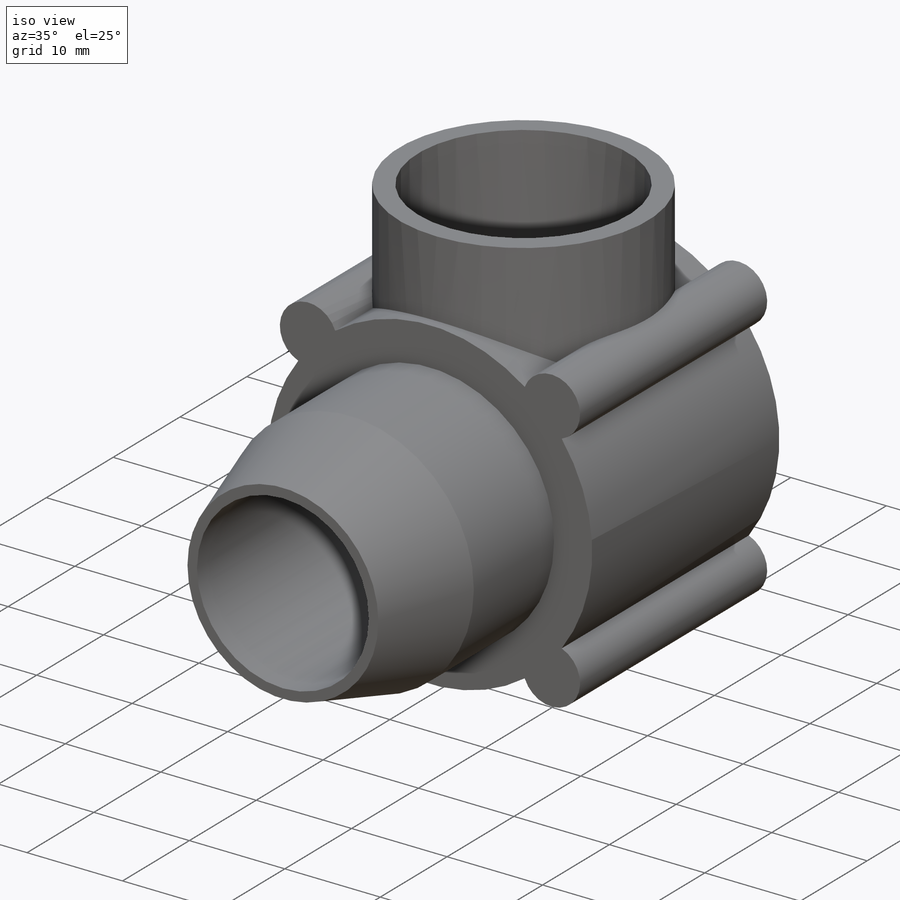
[diagram: iso view]
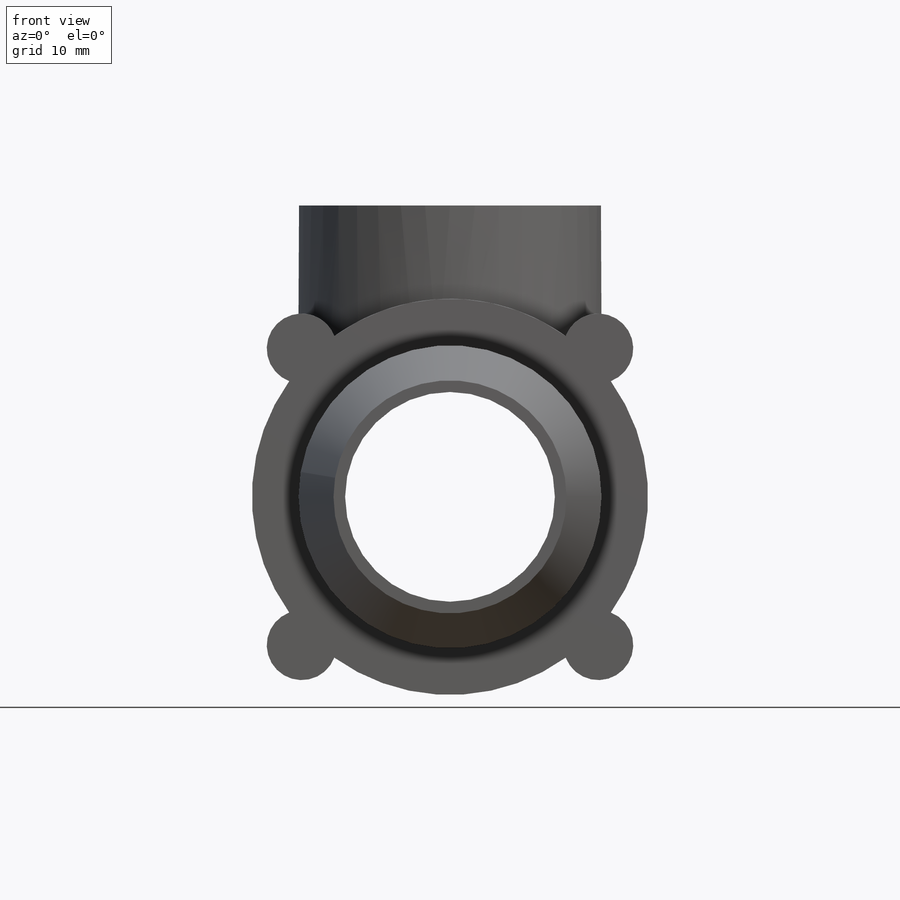
[diagram: front view]
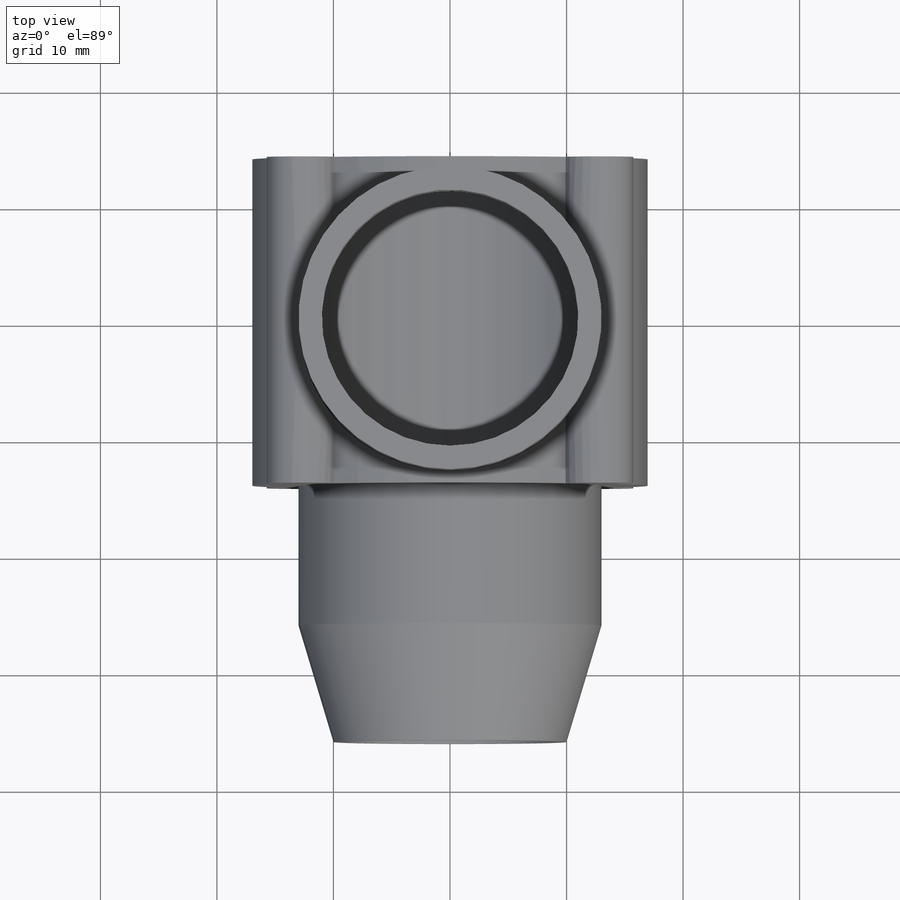
[diagram: top view]
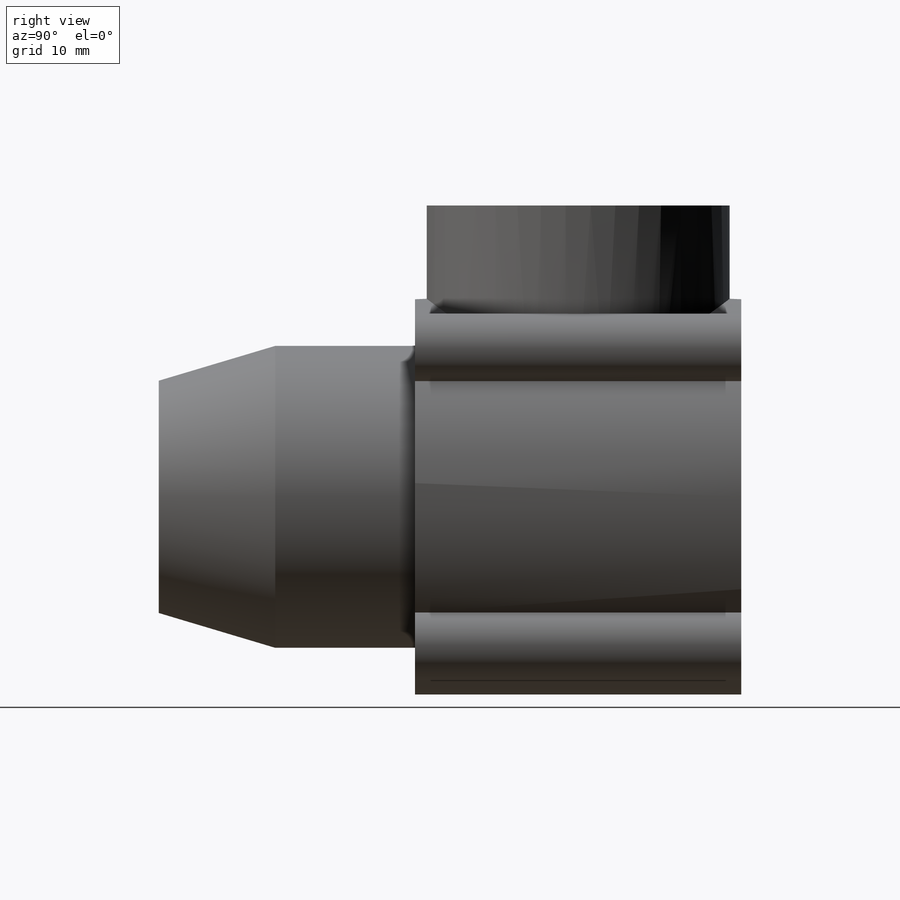
[diagram: right view]
SOLIDWORKS PART (.sldprt)
format: sldprt  version: not decoded by parser v0  size: 310,784 bytes
history: native  units: mm
features: sketch x9, extrude x4, cut_extrude x3, pattern_circular x2, material x1, chamfer x1, hole x1 (+12 scaffold rows collapsed)
feature tree (33):
  scaffold x12  (default folders/planes/origin — collapsed)
  material  "Material <not specified>"
  sketch  "Sketch1"  dims[D1=34.0mm]
  extrude  "Boss-Extrude1"  Depth=28mm
  sketch  "Sketch2"  dims[D1=26.0mm]
  extrude  "Boss-Extrude2"  Depth=22mm
  sketch  "Sketch3"  dims[D1=26.0mm D2=14.0mm]
  extrude  "Boss-Extrude3"  Depth=25mm
  sketch  "Sketch4"  dims[D1=31.0mm]
  cut_extrude  "Cut-Extrude1"  Depth=25mm
  sketch  "Sketch5"  dims[D1=18.0mm]
  cut_extrude  "Cut-Extrude2"  Depth=25mm
  chamfer  "Chamfer2"  Distance=10mm
  sketch  "Sketch7"  dims[c1.D1=6.0mm c1.D2=~29.484372mm c2.D2=45.0deg c2.D3=18.0mm]
  extrude  "Boss-Extrude4"  [1 undecoded]
  pattern_circular  "CirPattern1"  Count=4 Angle=360deg
  sketch  "Sketch6"  dims[D1=22.0mm]
  cut_extrude  "Cut-Extrude3"  Depth=25mm
  hole  "Tap Drill for M3x0.5 Tap1"  Diameter=2.5mm Depth=9mm
  sketch  "Sketch10"
  sketch  "Sketch9"  dims[hole-wizard template sketch: 39 standard entries collapsed; hole parameters kept: c13.Hole Dia.=2.5mm c13.Hole Depth=9.0mm c13.Near C'Sink Dia.=3.0mm c13.D4=~33.297463mm c13.Near C'Sink Angle=90.0deg c14.D5=~14.816244mm c14.Drill Angle=118.0deg]
  pattern_circular  "CirPattern2"  Count=4 Angle=360deg
decode coverage: 18 of 20 modeling features carry decoded parameters
note: ~ marks probable driven/reference dimensions
note: 1 parameter value undecoded
note: suppression state not decoded; provenance and decode notes live in map.json
